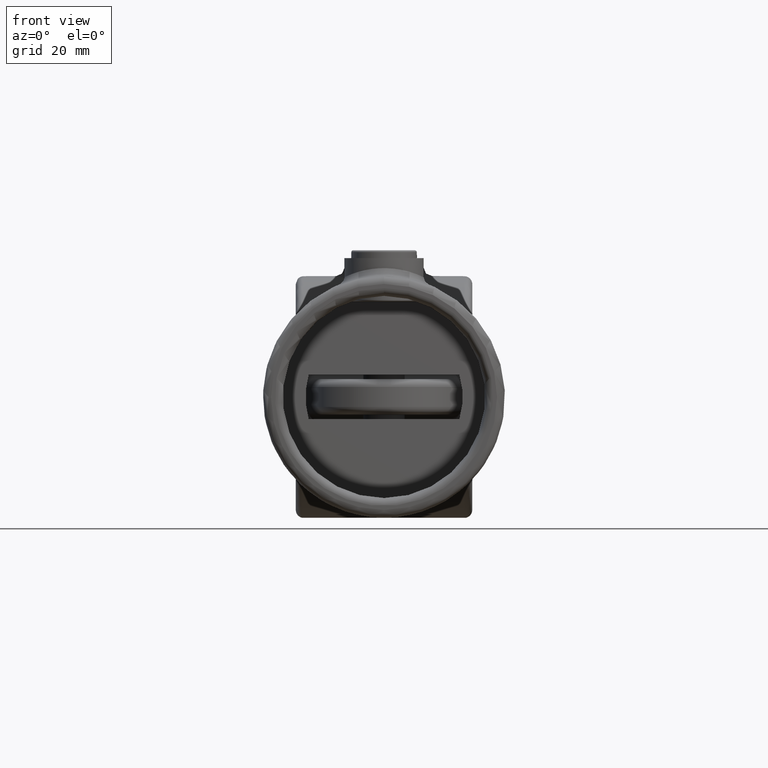
[diagram: clean part render]
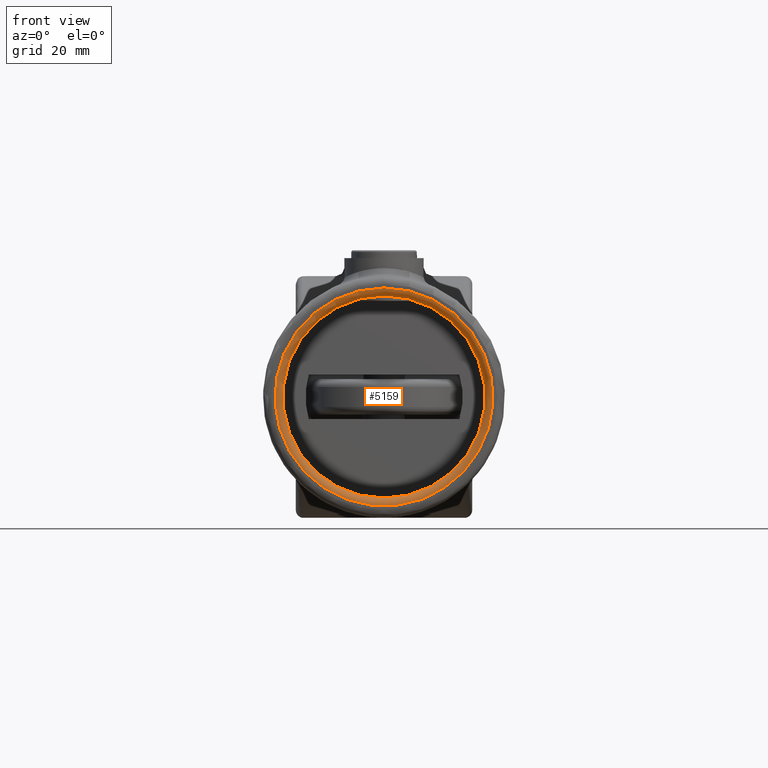
[diagram: same view with one face highlighted and labeled with its STEP entity id]
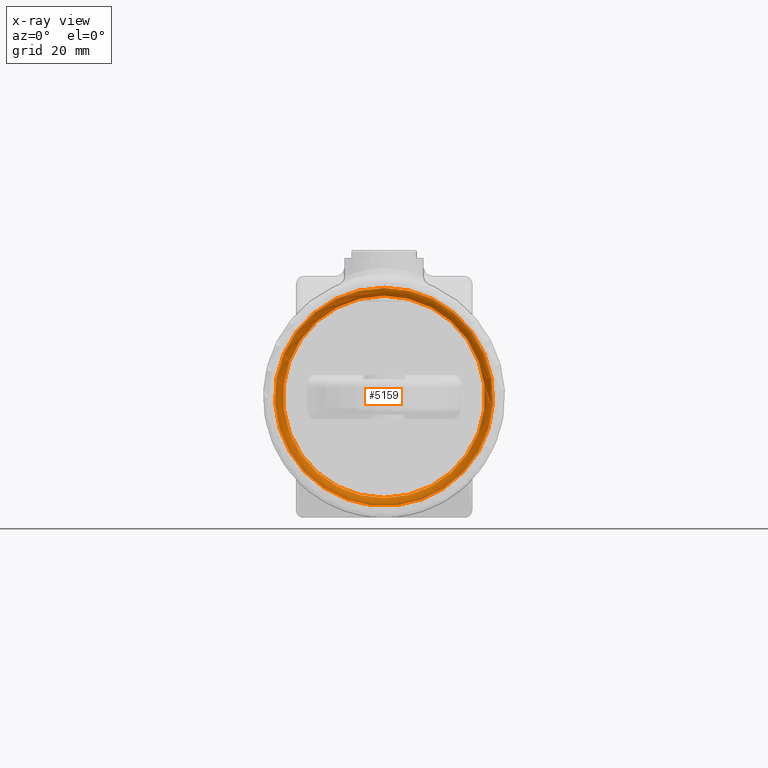
[diagram: x-ray of the same camera — body ghosted, the highlighted face saturated]
A machine part, front view. The second image highlights one B-rep face of the part: STEP entity #5159.
The next image is the same camera in x-ray: the body ghosted, the highlighted face saturated — about 0% of this face is hidden behind the body in this view.
In plain terms, the highlighted toroidal blend (fillet) surface has major radius 27.5 mm and minor (blend) radius 2 mm.
Its self-contained STEP definition (entity closure, byte-faithful):
#10 = DIRECTION ( 'NONE',  ( 0.000000000000000000, 1.000000000000000000, 0.000000000000000000 ) ) ;
#49 = EDGE_CURVE ( 'NONE', #1342, #1342, #3880, .T. ) ;
#197 = AXIS2_PLACEMENT_3D ( 'NONE', #3992, #10, #5187 ) ;
#198 = CARTESIAN_POINT ( 'NONE',  ( 0.000000000000000000, 0.000000000000000000, 0.000000000000000000 ) ) ;
#283 = EDGE_LOOP ( 'NONE', ( #585 ) ) ;
#401 = FACE_OUTER_BOUND ( 'NONE', #283, .T. ) ;
#445 = DIRECTION ( 'NONE',  ( 0.000000000000000000, 0.000000000000000000, 1.000000000000000000 ) ) ;
#525 = FACE_OUTER_BOUND ( 'NONE', #4624, .T. ) ;
#585 = ORIENTED_EDGE ( 'NONE', *, *, #49, .F. ) ;
#933 = EDGE_CURVE ( 'NONE', #3322, #3322, #4078, .T. ) ;
#1271 = AXIS2_PLACEMENT_3D ( 'NONE', #4440, #1310, #445 ) ;
#1310 = DIRECTION ( 'NONE',  ( -0.000000000000000000, -1.000000000000000000, -0.000000000000000000 ) ) ;
#1342 = VERTEX_POINT ( 'NONE', #4855 ) ;
#1785 = DIRECTION ( 'NONE',  ( 0.000000000000000000, 0.000000000000000000, 1.000000000000000000 ) ) ;
#2573 = ORIENTED_EDGE ( 'NONE', *, *, #933, .F. ) ;
#3322 = VERTEX_POINT ( 'NONE', #4836 ) ;
#3814 = DIRECTION ( 'NONE',  ( 0.000000000000000000, 1.000000000000000000, 0.000000000000000000 ) ) ;
#3880 = CIRCLE ( 'NONE', #4787, 27.49999999999999645 ) ;
#3992 = CARTESIAN_POINT ( 'NONE',  ( 0.000000000000000000, 2.000000000000001776, 0.000000000000000000 ) ) ;
#4078 = CIRCLE ( 'NONE', #1271, 25.50000000000000000 ) ;
#4417 = TOROIDAL_SURFACE ( 'NONE', #197, 27.49999999999999645, 2.000000000000000000 ) ;
#4440 = CARTESIAN_POINT ( 'NONE',  ( 0.000000000000000000, 2.000000000000001776, 0.000000000000000000 ) ) ;
#4624 = EDGE_LOOP ( 'NONE', ( #2573 ) ) ;
#4787 = AXIS2_PLACEMENT_3D ( 'NONE', #198, #3814, #1785 ) ;
#4836 = CARTESIAN_POINT ( 'NONE',  ( 0.000000000000000000, 2.000000000000001776, 25.50000000000000000 ) ) ;
#4855 = CARTESIAN_POINT ( 'NONE',  ( 0.000000000000000000, 0.000000000000000000, 27.49999999999999645 ) ) ;
#5159 = ADVANCED_FACE ( 'NONE', ( #525, #401 ), #4417, .T. ) ;
#5187 = DIRECTION ( 'NONE',  ( 0.000000000000000000, 0.000000000000000000, 1.000000000000000000 ) ) ;